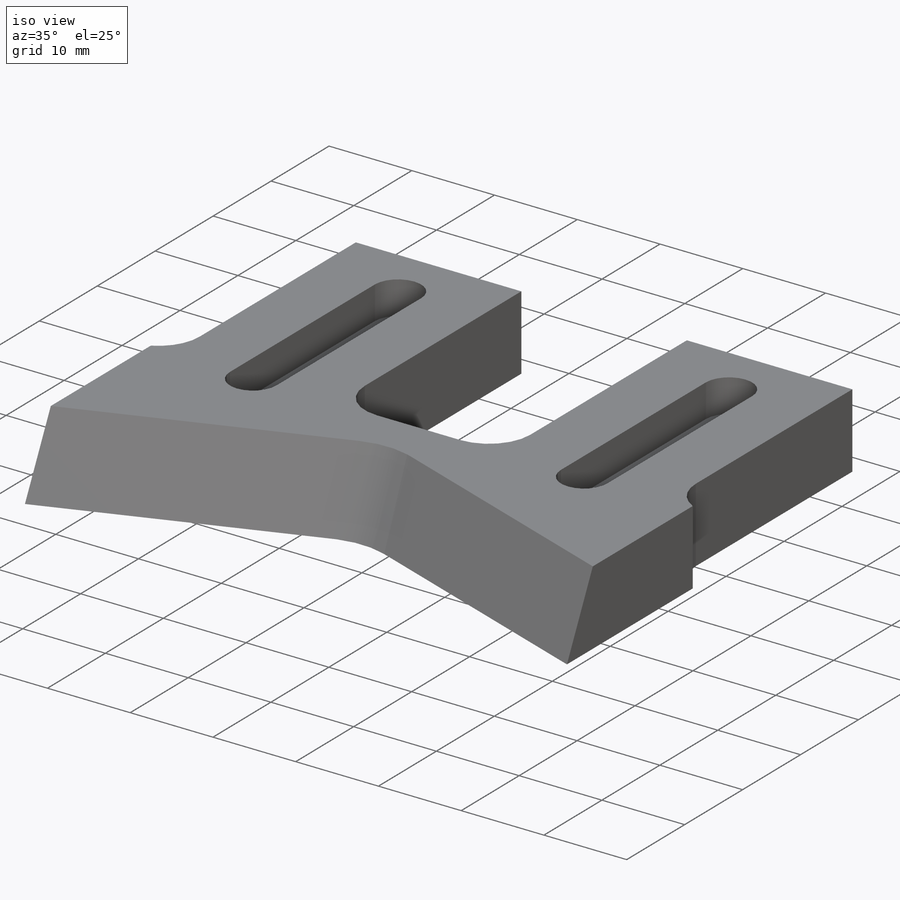
[diagram: iso view]
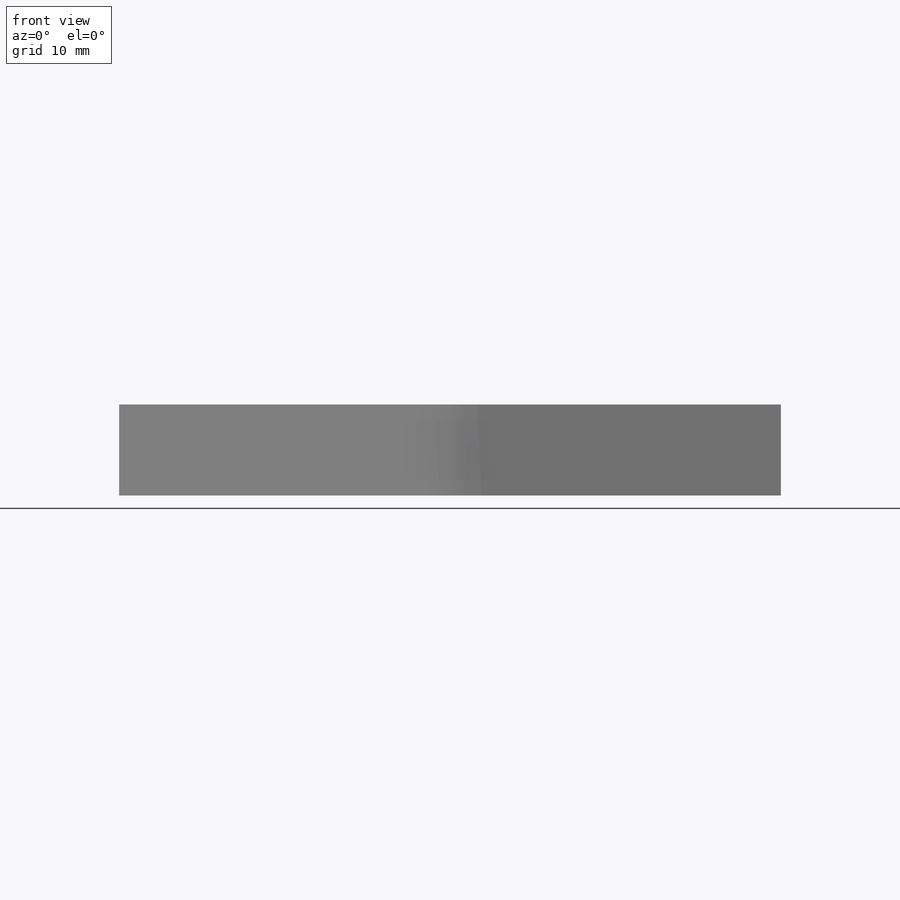
[diagram: front view]
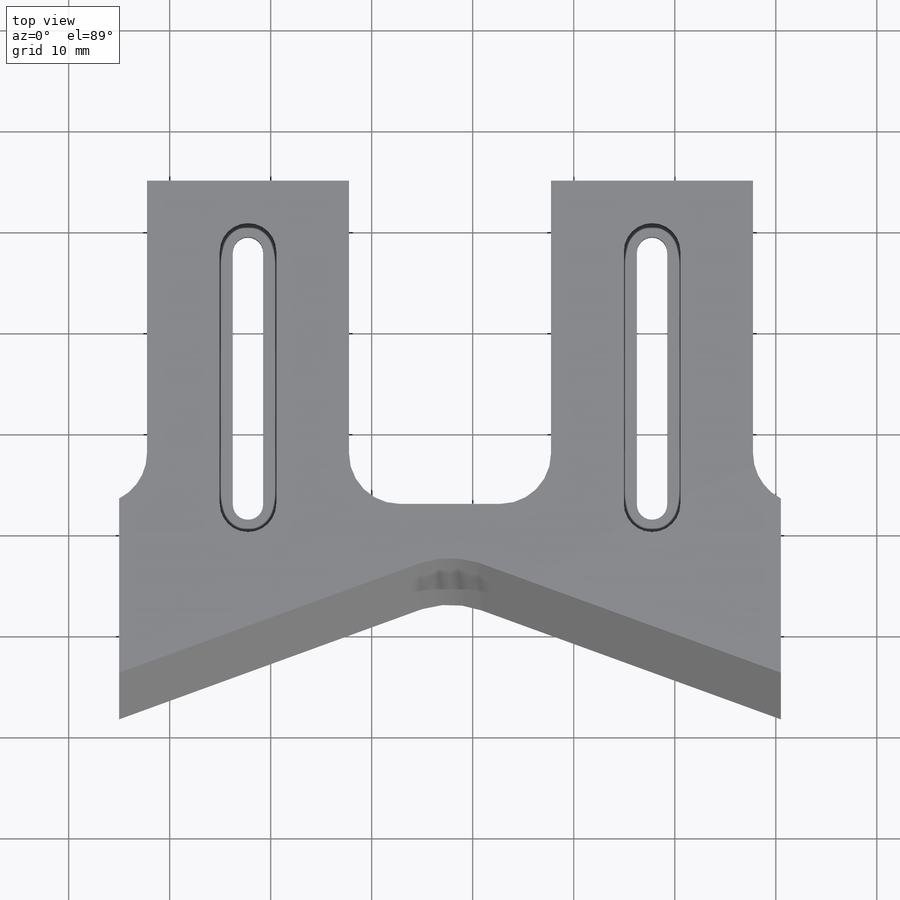
[diagram: top view]
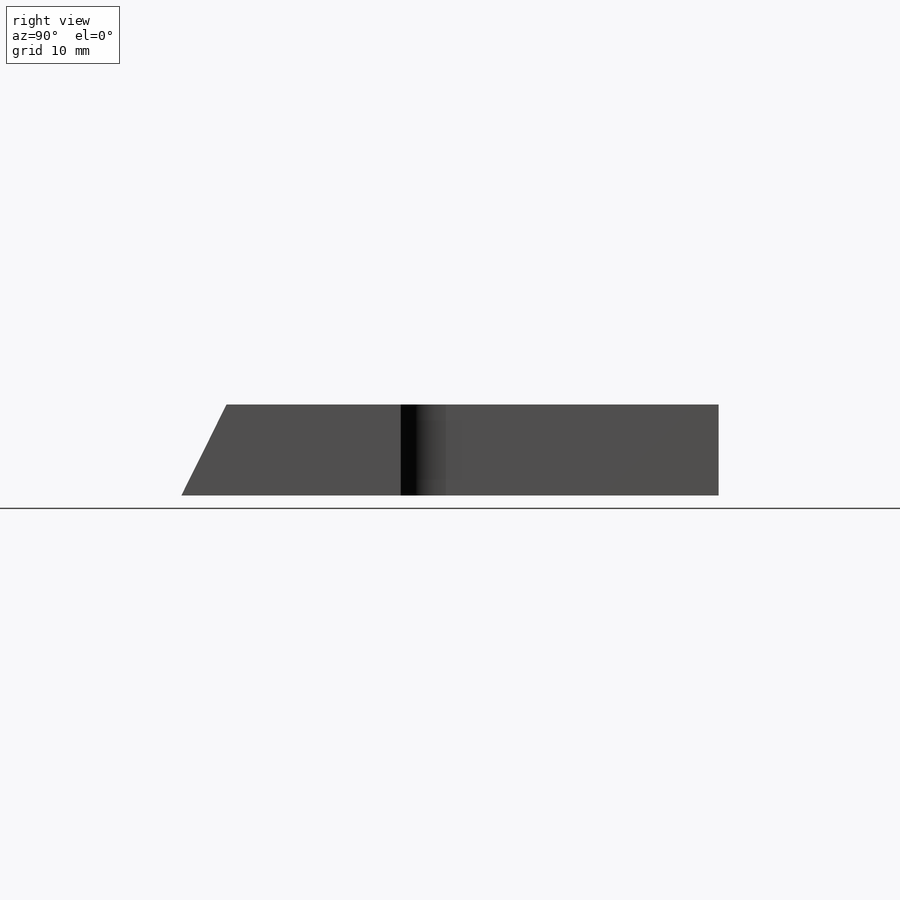
[diagram: right view]
SOLIDWORKS PART (.sldprt)
format: sldprt  version: not decoded by parser v0  size: 288,768 bytes
history: native  units: mm
features: sketch x5, cut_extrude x4, fillet x2, material x1, extrude x1, chamfer x1 (+11 scaffold rows collapsed)
feature tree (25):
  scaffold x11  (default folders/planes/origin — collapsed)
  material  "POM Acetal Copolymer"
  sketch  "Sketch1"  dims[c1.D1=55.0mm c1.D2=30.0mm c2.D2=70.0deg c2.D3=75.5mm c2.D4=5.0mm]
  extrude  "Boss-Extrude1"  Depth=9mm
  sketch  "Sketch4"  dims[c1.D1=3.0mm c1.D2=3.0mm c1.D3=19.75mm c1.D4=19.75mm c1.D5=20.0mm c1.D6=25.0mm c1.D7=6.0mm c2.D5=11.0mm c2.D6=7.0mm c2.D3=40.0mm c2.D4=20.0mm c3.D5=25.0mm]
  cut_extrude  "Cut-Extrude2"  [1 undecoded]
  sketch  "Sketch5"  dims[c1.D1=30.0mm c1.D2=40.0mm c1.D3=40.0mm c1.D4=9.75mm c1.D5=32.0mm c1.D6=9.75mm c2.D1=20.0mm c2.D2=20.0mm c2.D7=40.0mm c2.D3=10.0mm c2.D4=10.0mm c2.D5=10.0mm c3.D3=32.0mm]
  cut_extrude  "Cut-Extrude3"  Depth=10mm
  fillet  "Fillet1"  Radius=5mm
  sketch  "Sketch6"  dims[D1=5.6mm D2=5.6mm]
  cut_extrude  "Cut-Extrude4"  Depth=4mm
  chamfer  "Chamfer1"  Distance=9mm Angle=25deg
  fillet  "Fillet2"  Radius=10mm
  sketch  "Sketch7"  dims[D1=5.0mm]
  cut_extrude  "Cut-Extrude5"  [1 undecoded]
decode coverage: 11 of 13 modeling features carry decoded parameters
note: 2 parameter values undecoded
note: suppression state not decoded; provenance and decode notes live in map.json
